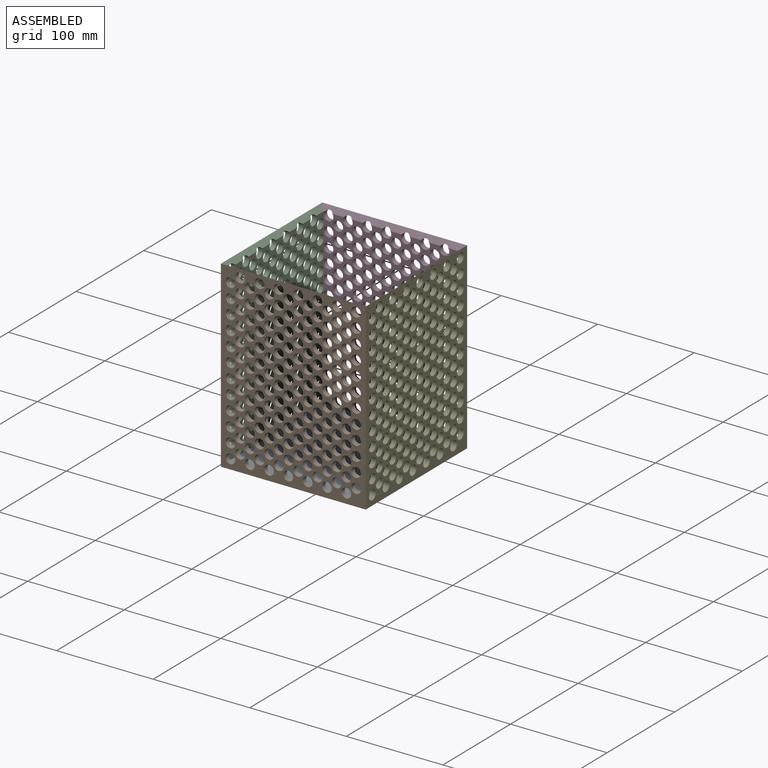
[diagram: assembled view]
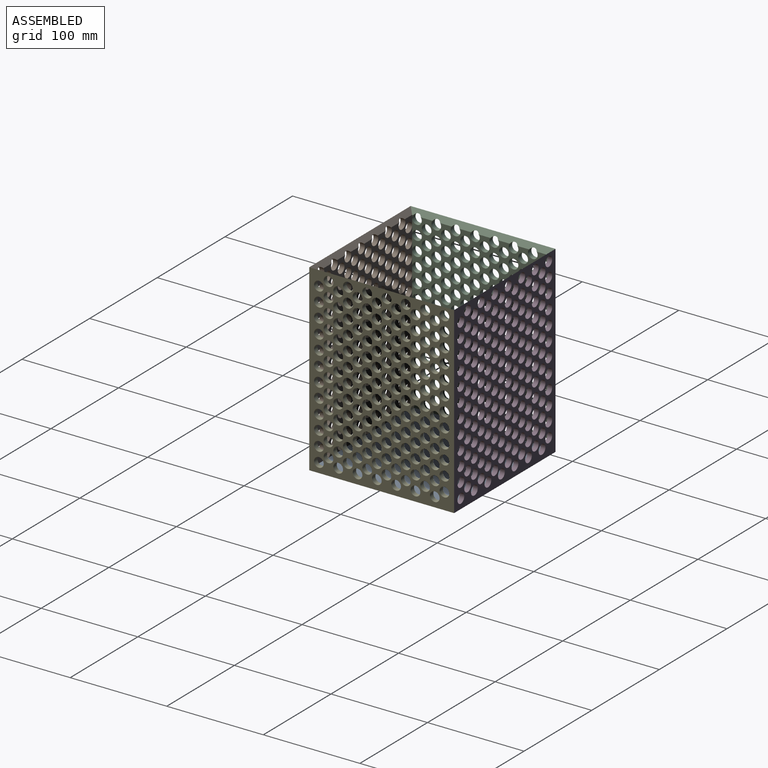
[diagram: assembled view, second angle]
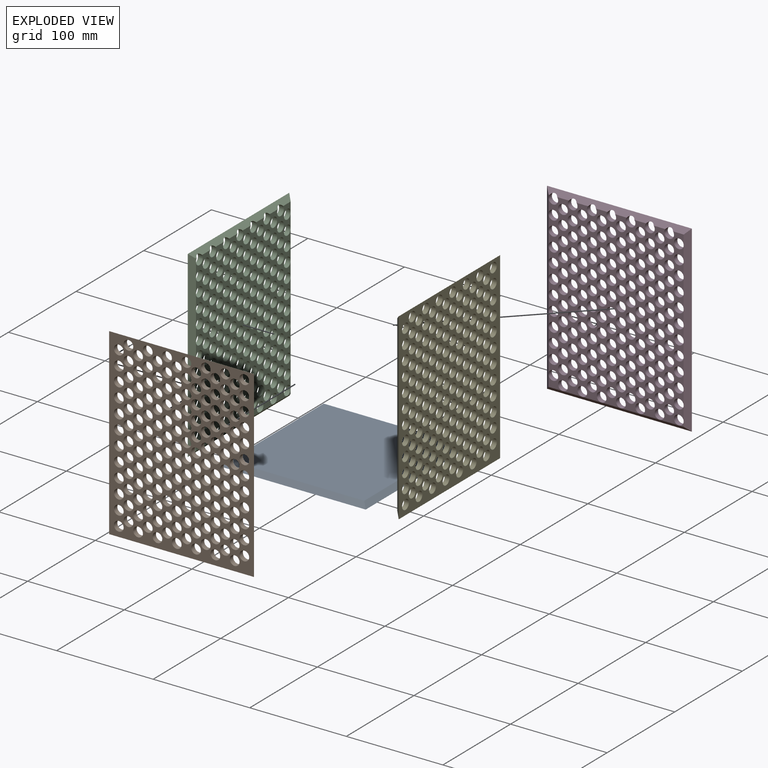
[diagram: exploded view]
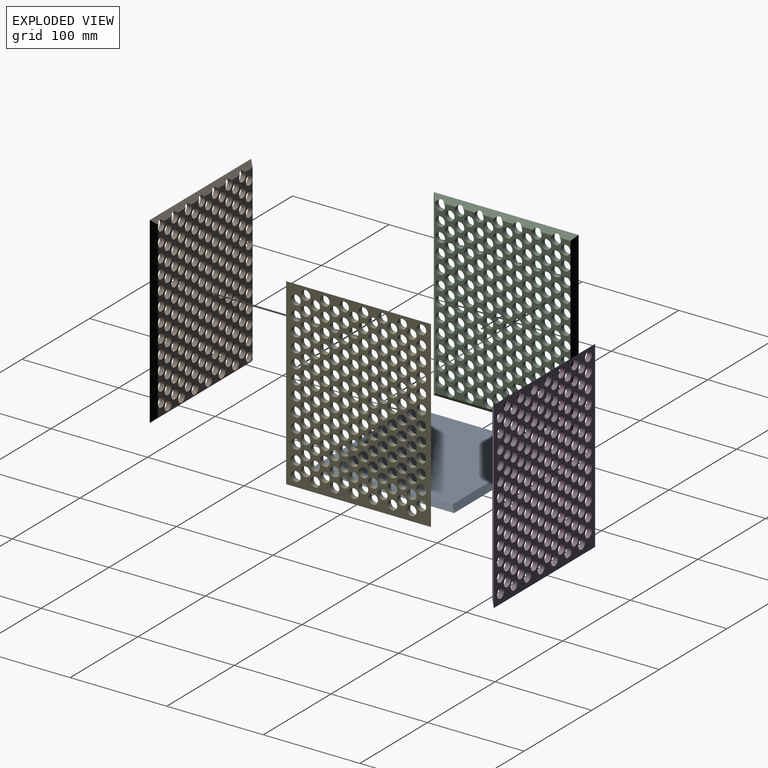
[diagram: exploded view, second angle]
ASSEMBLY  parts=5 mates=4
PART A: 6 faces, bbox 150x150x5 mm
  f0: plane 140x140mm, normal (0,0,1), area 19600mm2, adj f2,f3,f4,f5
  f1: plane 150x150mm, normal (0,0,-1), area 22500mm2, adj f2,f3,f4,f5
  f2: plane 150x5mm, normal (0.71,0,0.71), area 1025.3mm2, adj f0,f1,f3,f4
  f3: plane 150x5mm, normal (0,0.71,0.71), area 1025.3mm2, adj f0,f1,f2,f5
  f4: plane 150x5mm, normal (0,-0.71,0.71), area 1025.3mm2, adj f0,f1,f2,f5
  f5: plane 150x5mm, normal (-0.71,0,0.71), area 1025.3mm2, adj f0,f1,f3,f4
PART B: 176 faces, bbox 150x5x190 mm
  f0: plane 180x140mm, normal (0,-1,0), area 12077.3mm2, adj f2,f3,f4,f5,f6,f7,f8,f9
  f1: plane 5x5mm, normal (0,-1,0), area 5.4mm2, adj f3,f172,f174
  f2: cylinder r=5mm len=10mm, axis (0,-1,0), area 157.1mm2, adj f0,f169
  f3: cylinder r=5mm len=10mm, axis (0,-1,0), area 157.1mm2, adj f0,f1,f169
  f4: cylinder r=5mm len=10mm, axis (0,-1,0), area 157.1mm2, adj f0,f169
  f5: cylinder r=5mm len=10mm, axis (0,-1,0), area 157.1mm2, adj f0,f169
  f6: cylinder r=5mm len=10mm, axis (0,-1,0), area 157.1mm2, adj f0,f169
  f7: cylinder r=5mm len=10mm, axis (0,-1,0), area 157.1mm2, adj f0,f169
  f8: cylinder r=5mm len=10mm, axis (0,-1,0), area 157.1mm2, adj f0,f169
  f9: cylinder r=5mm len=10mm, axis (0,-1,0), area 157.1mm2, adj f0,f169
  f10: cylinder r=5mm len=10mm, axis (0,-1,0), area 157.1mm2, adj f0,f169
  f11: cylinder r=5mm len=10mm, axis (0,-1,0), area 157.1mm2, adj f0,f169
  f12: cylinder r=5mm len=10mm, axis (0,-1,0), area 157.1mm2, adj f0,f169
  f13: cylinder r=5mm len=10mm, axis (0,-1,0), area 157.1mm2, adj f0,f169
  f14: cylinder r=5mm len=10mm, axis (0,-1,0), area 157.1mm2, adj f0,f169
  f15: cylinder r=5mm len=10mm, axis (0,-1,0), area 157.1mm2, adj f0,f169
  f16: cylinder r=5mm len=10mm, axis (0,-1,0), area 157.1mm2, adj f0,f169
  f17: cylinder r=5mm len=10mm, axis (0,-1,0), area 157.1mm2, adj f0,f169
  f18: cylinder r=5mm len=10mm, axis (0,-1,0), area 157.1mm2, adj f0,f169
  f19: cylinder r=5mm len=10mm, axis (0,-1,0), area 157.1mm2, adj f0,f169
  f20: cylinder r=5mm len=10mm, axis (0,-1,0), area 157.1mm2, adj f0,f169
  f21: cylinder r=5mm len=10mm, axis (0,-1,0), area 157.1mm2, adj f0,f169
  f22: cylinder r=5mm len=10mm, axis (0,-1,0), area 157.1mm2, adj f0,f169
  f23: cylinder r=5mm len=10mm, axis (0,-1,0), area 157.1mm2, adj f0,f169
  f24: cylinder r=5mm len=10mm, axis (0,-1,0), area 157.1mm2, adj f0,f169
  f25: cylinder r=5mm len=10mm, axis (0,-1,0), area 157.1mm2, adj f0,f169
  f26: cylinder r=5mm len=10mm, axis (0,-1,0), area 157.1mm2, adj f0,f169
  f27: cylinder r=5mm len=10mm, axis (0,-1,0), area 157.1mm2, adj f0,f169
  f28: cylinder r=5mm len=10mm, axis (0,-1,0), area 157.1mm2, adj f0,f169
  f29: cylinder r=5mm len=10mm, axis (0,-1,0), area 157.1mm2, adj f0,f169
  f30: cylinder r=5mm len=10mm, axis (0,-1,0), area 157.1mm2, adj f0,f169
  f31: cylinder r=5mm len=10mm, axis (0,-1,0), area 157.1mm2, adj f0,f169
  f32: cylinder r=5mm len=10mm, axis (0,-1,0), area 157.1mm2, adj f0,f169
  f33: cylinder r=5mm len=10mm, axis (0,-1,0), area 157.1mm2, adj f0,f169
  f34: cylinder r=5mm len=10mm, axis (0,-1,0), area 157.1mm2, adj f0,f169
  f35: cylinder r=5mm len=10mm, axis (0,-1,0), area 157.1mm2, adj f0,f169
  f36: cylinder r=5mm len=10mm, axis (0,-1,0), area 157.1mm2, adj f0,f169
  f37: cylinder r=5mm len=10mm, axis (0,-1,0), area 157.1mm2, adj f0,f169
  f38: cylinder r=5mm len=10mm, axis (0,-1,0), area 157.1mm2, adj f0,f169
  f39: cylinder r=5mm len=10mm, axis (0,-1,0), area 157.1mm2, adj f0,f169
  f40: cylinder r=5mm len=10mm, axis (0,-1,0), area 157.1mm2, adj f0,f169
  f41: cylinder r=5mm len=10mm, axis (0,-1,0), area 157.1mm2, adj f0,f169
  f42: cylinder r=5mm len=10mm, axis (0,-1,0), area 157.1mm2, adj f0,f169
  f43: cylinder r=5mm len=10mm, axis (0,-1,0), area 157.1mm2, adj f0,f169
  f44: cylinder r=5mm len=10mm, axis (0,-1,0), area 157.1mm2, adj f0,f169
  f45: cylinder r=5mm len=10mm, axis (0,-1,0), area 157.1mm2, adj f0,f169
  f46: cylinder r=5mm len=10mm, axis (0,-1,0), area 157.1mm2, adj f0,f169
  f47: cylinder r=5mm len=10mm, axis (0,-1,0), area 157.1mm2, adj f0,f169
  f48: cylinder r=5mm len=10mm, axis (0,-1,0), area 157.1mm2, adj f0,f169
  f49: cylinder r=5mm len=10mm, axis (0,-1,0), area 157.1mm2, adj f0,f169
  f50: cylinder r=5mm len=10mm, axis (0,-1,0), area 157.1mm2, adj f0,f169
  f51: cylinder r=5mm len=10mm, axis (0,-1,0), area 157.1mm2, adj f0,f169
  f52: cylinder r=5mm len=10mm, axis (0,-1,0), area 157.1mm2, adj f0,f169
  f53: cylinder r=5mm len=10mm, axis (0,-1,0), area 157.1mm2, adj f0,f169
  f54: cylinder r=5mm len=10mm, axis (0,-1,0), area 157.1mm2, adj f0,f169
  f55: cylinder r=5mm len=10mm, axis (0,-1,0), area 157.1mm2, adj f0,f169
  f56: cylinder r=5mm len=10mm, axis (0,-1,0), area 157.1mm2, adj f0,f169
  f57: cylinder r=5mm len=10mm, axis (0,-1,0), area 157.1mm2, adj f0,f169
  f58: cylinder r=5mm len=10mm, axis (0,-1,0), area 157.1mm2, adj f0,f169
  f59: cylinder r=5mm len=10mm, axis (0,-1,0), area 157.1mm2, adj f0,f169
  f60: cylinder r=5mm len=10mm, axis (0,-1,0), area 157.1mm2, adj f0,f169
  f61: cylinder r=5mm len=10mm, axis (0,-1,0), area 157.1mm2, adj f0,f169
  f62: cylinder r=5mm len=10mm, axis (0,-1,0), area 157.1mm2, adj f0,f169
  f63: cylinder r=5mm len=10mm, axis (0,-1,0), area 157.1mm2, adj f0,f169
  f64: cylinder r=5mm len=10mm, axis (0,-1,0), area 157.1mm2, adj f0,f169
  f65: cylinder r=5mm len=10mm, axis (0,-1,0), area 157.1mm2, adj f0,f169
  f66: cylinder r=5mm len=10mm, axis (0,-1,0), area 157.1mm2, adj f0,f169
  f67: cylinder r=5mm len=10mm, axis (0,-1,0), area 157.1mm2, adj f0,f169
  f68: cylinder r=5mm len=10mm, axis (0,-1,0), area 157.1mm2, adj f0,f169
  f69: cylinder r=5mm len=10mm, axis (0,-1,0), area 157.1mm2, adj f0,f169
  f70: cylinder r=5mm len=10mm, axis (0,-1,0), area 157.1mm2, adj f0,f169
  f71: cylinder r=5mm len=10mm, axis (0,-1,0), area 157.1mm2, adj f0,f169
  f72: cylinder r=5mm len=10mm, axis (0,-1,0), area 157.1mm2, adj f0,f169
  f73: cylinder r=5mm len=10mm, axis (0,-1,0), area 157.1mm2, adj f0,f169
  f74: cylinder r=5mm len=10mm, axis (0,-1,0), area 157.1mm2, adj f0,f169
  f75: cylinder r=5mm len=10mm, axis (0,-1,0), area 157.1mm2, adj f0,f169
  f76: cylinder r=5mm len=10mm, axis (0,-1,0), area 157.1mm2, adj f0,f169
  f77: cylinder r=5mm len=10mm, axis (0,-1,0), area 157.1mm2, adj f0,f169
  f78: cylinder r=5mm len=10mm, axis (0,-1,0), area 157.1mm2, adj f0,f169
  f79: cylinder r=5mm len=10mm, axis (0,-1,0), area 157.1mm2, adj f0,f169
  f80: cylinder r=5mm len=10mm, axis (0,-1,0), area 157.1mm2, adj f0,f169
  f81: cylinder r=5mm len=10mm, axis (0,-1,0), area 157.1mm2, adj f0,f169
  f82: cylinder r=5mm len=10mm, axis (0,-1,0), area 157.1mm2, adj f0,f169
  f83: cylinder r=5mm len=10mm, axis (0,-1,0), area 157.1mm2, adj f0,f169
  f84: cylinder r=5mm len=10mm, axis (0,-1,0), area 157.1mm2, adj f0,f169
  f85: cylinder r=5mm len=10mm, axis (0,-1,0), area 157.1mm2, adj f0,f169
  f86: cylinder r=5mm len=10mm, axis (0,-1,0), area 157.1mm2, adj f0,f169
  f87: cylinder r=5mm len=10mm, axis (0,-1,0), area 157.1mm2, adj f0,f169
  f88: cylinder r=5mm len=10mm, axis (0,-1,0), area 157.1mm2, adj f0,f169
  f89: cylinder r=5mm len=10mm, axis (0,-1,0), area 157.1mm2, adj f0,f169
  f90: cylinder r=5mm len=10mm, axis (0,-1,0), area 157.1mm2, adj f0,f169
  f91: cylinder r=5mm len=10mm, axis (0,-1,0), area 157.1mm2, adj f0,f169
  f92: cylinder r=5mm len=10mm, axis (0,-1,0), area 157.1mm2, adj f0,f169
  f93: cylinder r=5mm len=10mm, axis (0,-1,0), area 157.1mm2, adj f0,f169
  f94: cylinder r=5mm len=10mm, axis (0,-1,0), area 157.1mm2, adj f0,f169
  f95: cylinder r=5mm len=10mm, axis (0,-1,0), area 157.1mm2, adj f0,f169
  f96: cylinder r=5mm len=10mm, axis (0,-1,0), area 157.1mm2, adj f0,f169
  f97: cylinder r=5mm len=10mm, axis (0,-1,0), area 157.1mm2, adj f0,f169
  f98: cylinder r=5mm len=10mm, axis (0,-1,0), area 157.1mm2, adj f0,f169
  f99: cylinder r=5mm len=10mm, axis (0,-1,0), area 157.1mm2, adj f0,f169
  f100: cylinder r=5mm len=10mm, axis (0,-1,0), area 157.1mm2, adj f0,f169
  f101: cylinder r=5mm len=10mm, axis (0,-1,0), area 157.1mm2, adj f0,f169
  f102: cylinder r=5mm len=10mm, axis (0,-1,0), area 157.1mm2, adj f0,f169
  f103: cylinder r=5mm len=10mm, axis (0,-1,0), area 157.1mm2, adj f0,f169
  f104: cylinder r=5mm len=10mm, axis (0,-1,0), area 157.1mm2, adj f0,f169
  f105: cylinder r=5mm len=10mm, axis (0,-1,0), area 157.1mm2, adj f0,f169
  f106: cylinder r=5mm len=10mm, axis (0,-1,0), area 157.1mm2, adj f0,f169
  f107: cylinder r=5mm len=10mm, axis (0,-1,0), area 157.1mm2, adj f0,f169
  f108: cylinder r=5mm len=10mm, axis (0,-1,0), area 157.1mm2, adj f0,f169
  f109: cylinder r=5mm len=10mm, axis (0,-1,0), area 157.1mm2, adj f0,f169
  f110: cylinder r=5mm len=10mm, axis (0,-1,0), area 157.1mm2, adj f0,f169
  f111: cylinder r=5mm len=10mm, axis (0,-1,0), area 157.1mm2, adj f0,f169
  f112: cylinder r=5mm len=10mm, axis (0,-1,0), area 157.1mm2, adj f0,f169
  f113: cylinder r=5mm len=10mm, axis (0,-1,0), area 157.1mm2, adj f0,f169
  f114: cylinder r=5mm len=10mm, axis (0,-1,0), area 157.1mm2, adj f0,f169
  f115: cylinder r=5mm len=10mm, axis (0,-1,0), area 157.1mm2, adj f0,f169
  f116: cylinder r=5mm len=10mm, axis (0,-1,0), area 157.1mm2, adj f0,f169
  f117: cylinder r=5mm len=10mm, axis (0,-1,0), area 157.1mm2, adj f0,f169
  f118: cylinder r=5mm len=10mm, axis (0,-1,0), area 157.1mm2, adj f0,f169
  f119: cylinder r=5mm len=10mm, axis (0,-1,0), area 157.1mm2, adj f0,f169
  f120: cylinder r=5mm len=10mm, axis (0,-1,0), area 157.1mm2, adj f0,f169
  f121: cylinder r=5mm len=10mm, axis (0,-1,0), area 157.1mm2, adj f0,f169
  f122: cylinder r=5mm len=10mm, axis (0,-1,0), area 157.1mm2, adj f0,f169
  f123: cylinder r=5mm len=10mm, axis (0,-1,0), area 157.1mm2, adj f0,f169
  f124: cylinder r=5mm len=10mm, axis (0,-1,0), area 157.1mm2, adj f0,f169
  f125: cylinder r=5mm len=10mm, axis (0,-1,0), area 157.1mm2, adj f0,f169
  f126: cylinder r=5mm len=10mm, axis (0,-1,0), area 157.1mm2, adj f0,f169
  f127: cylinder r=5mm len=10mm, axis (0,-1,0), area 157.1mm2, adj f0,f169
  f128: cylinder r=5mm len=10mm, axis (0,-1,0), area 157.1mm2, adj f0,f169
  f129: cylinder r=5mm len=10mm, axis (0,-1,0), area 157.1mm2, adj f0,f169
  f130: cylinder r=5mm len=10mm, axis (0,-1,0), area 157.1mm2, adj f0,f169
  f131: cylinder r=5mm len=10mm, axis (0,-1,0), area 157.1mm2, adj f0,f169
  f132: cylinder r=5mm len=10mm, axis (0,-1,0), area 157.1mm2, adj f0,f169
  f133: cylinder r=5mm len=10mm, axis (0,-1,0), area 157.1mm2, adj f0,f169
  f134: cylinder r=5mm len=10mm, axis (0,-1,0), area 157.1mm2, adj f0,f169
  f135: cylinder r=5mm len=10mm, axis (0,-1,0), area 157.1mm2, adj f0,f169
  f136: cylinder r=5mm len=10mm, axis (0,-1,0), area 157.1mm2, adj f0,f169
  f137: cylinder r=5mm len=10mm, axis (0,-1,0), area 157.1mm2, adj f0,f169
  f138: cylinder r=5mm len=10mm, axis (0,-1,0), area 157.1mm2, adj f0,f169
  f139: cylinder r=5mm len=10mm, axis (0,-1,0), area 157.1mm2, adj f0,f169
  f140: cylinder r=5mm len=10mm, axis (0,-1,0), area 157.1mm2, adj f0,f169
  f141: cylinder r=5mm len=10mm, axis (0,-1,0), area 157.1mm2, adj f0,f169
  f142: cylinder r=5mm len=10mm, axis (0,-1,0), area 157.1mm2, adj f0,f169
  f143: cylinder r=5mm len=10mm, axis (0,-1,0), area 157.1mm2, adj f0,f169
  f144: cylinder r=5mm len=10mm, axis (0,-1,0), area 157.1mm2, adj f0,f169
  f145: cylinder r=5mm len=10mm, axis (0,-1,0), area 157.1mm2, adj f0,f169
  f146: cylinder r=5mm len=10mm, axis (0,-1,0), area 157.1mm2, adj f0,f169
  f147: cylinder r=5mm len=10mm, axis (0,-1,0), area 157.1mm2, adj f0,f169
  f148: cylinder r=5mm len=10mm, axis (0,-1,0), area 157.1mm2, adj f0,f169
  f149: cylinder r=5mm len=10mm, axis (0,-1,0), area 157.1mm2, adj f0,f169
  f150: cylinder r=5mm len=10mm, axis (0,-1,0), area 157.1mm2, adj f0,f169
  f151: cylinder r=5mm len=10mm, axis (0,-1,0), area 157.1mm2, adj f0,f169
  f152: cylinder r=5mm len=10mm, axis (0,-1,0), area 157.1mm2, adj f0,f169
  f153: cylinder r=5mm len=10mm, axis (0,-1,0), area 157.1mm2, adj f0,f169
  f154: cylinder r=5mm len=10mm, axis (0,-1,0), area 157.1mm2, adj f0,f169
  f155: cylinder r=5mm len=10mm, axis (0,-1,0), area 157.1mm2, adj f0,f169
  f156: cylinder r=5mm len=10mm, axis (0,-1,0), area 144.9mm2, adj f0,f169,f173
  f157: cylinder r=5mm len=10mm, axis (0,-1,0), area 157.1mm2, adj f0,f169
  f158: cylinder r=5mm len=10mm, axis (0,-1,0), area 144.9mm2, adj f0,f169,f173
  f159: cylinder r=5mm len=10mm, axis (0,-1,0), area 157.1mm2, adj f0,f169
  f160: cylinder r=5mm len=10mm, axis (0,-1,0), area 144.9mm2, adj f0,f169,f173
  f161: cylinder r=5mm len=10mm, axis (0,-1,0), area 157.1mm2, adj f0,f169
  f162: cylinder r=5mm len=10mm, axis (0,-1,0), area 144.9mm2, adj f0,f169,f173
  f163: cylinder r=5mm len=10mm, axis (0,-1,0), area 157.1mm2, adj f0,f169
  f164: cylinder r=5mm len=10mm, axis (0,-1,0), area 144.9mm2, adj f0,f169,f173
  f165: cylinder r=5mm len=10mm, axis (0,-1,0), area 157.1mm2, adj f0,f169
  f166: cylinder r=5mm len=10mm, axis (0,-1,0), area 144.9mm2, adj f0,f169,f173
  f167: cylinder r=5mm len=10mm, axis (0,-1,0), area 157.1mm2, adj f0,f169
  f168: plane 3x1mm, normal (0,-1,0), area 1mm2, adj f171,f173,f175
  f169: plane 190x150mm, normal (0,1,0), area 15305.3mm2, adj f2,f3,f4,f5,f6,f7,f8,f9
  f170: cylinder r=5mm len=10mm, axis (0,-1,0), area 157.1mm2, adj f0,f169
  f171: cylinder r=5mm len=10mm, axis (0,-1,0), area 144.9mm2, adj f0,f168,f169,f173
  f172: plane 190x5mm, normal (0.71,-0.71,0), area 1308.1mm2, adj f0,f1,f169,f173,f174
  f173: plane 150x5mm, normal (0,-0.71,0.71), area 914.6mm2, adj f0,f156,f158,f160,f162,f164,f166,f168
  f174: plane 150x5mm, normal (0,-0.71,-0.71), area 1025.3mm2, adj f0,f1,f169,f172,f175
  f175: plane 190x5mm, normal (-0.71,-0.71,0), area 1308.1mm2, adj f0,f168,f169,f173,f174
PART C: same geometry as B
PART D: same geometry as B
PART E: same geometry as B
PLACE A t=(0,-75,-95)mm
PLACE B rot(axis=(0,0,-1),180deg) t=(0,-150,0)mm
PLACE C rot(axis=(0,0,1),90deg) t=(-75,-75,0)mm
PLACE D at identity fixed
PLACE E rot(axis=(0,0,-1),90deg) t=(75,-75,0)mm
MATE fastened C.f175 <-> B.f172  axis (0.71,-0.71,0) through (-72.52,-147.52,0)mm
MATE fastened D.f172 <-> E.f175  axis (0.71,-0.71,0) through (72.52,-2.48,0)mm
MATE fastened A.f2 <-> E.f174  axis (0.71,0,0.71) through (72.53,-75,-92.53)mm
MATE fastened C.f172 <-> D.f175  axis (0.71,0.71,0) through (-72.52,-2.48,0)mm
